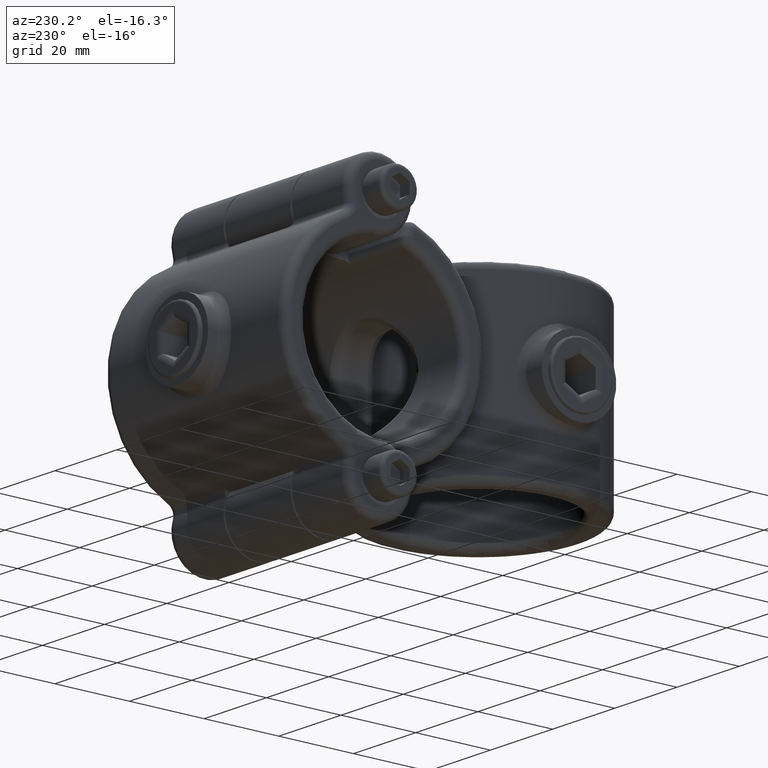
[diagram: clean part render]
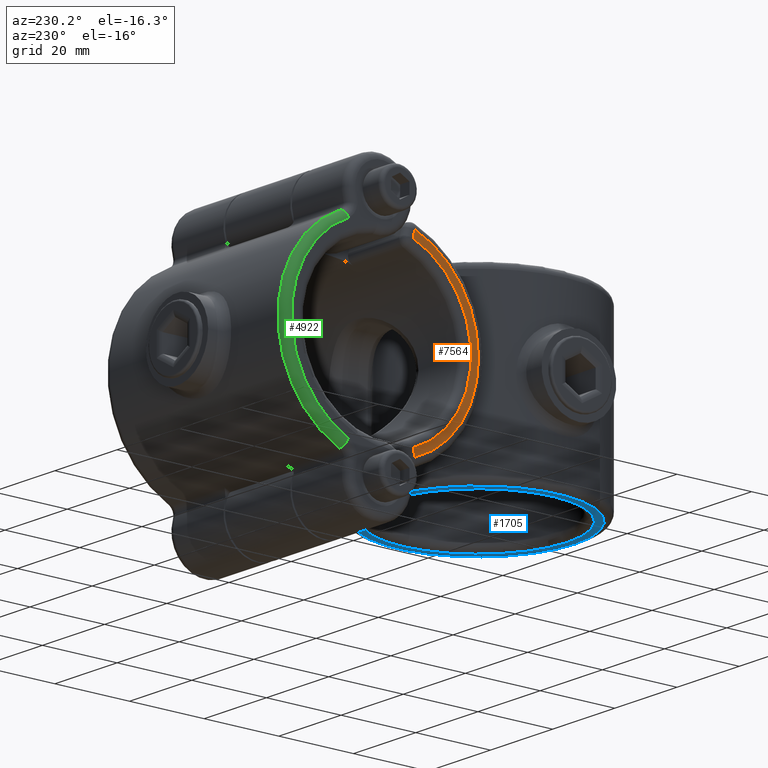
[diagram: same view with three faces highlighted in distinct colors, each labeled with its STEP entity id]
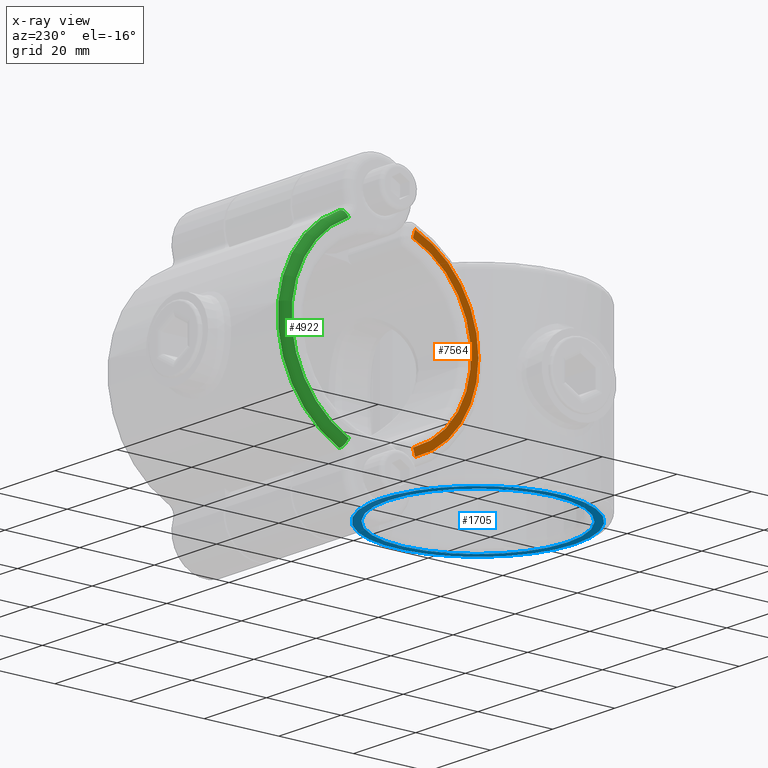
[diagram: x-ray of the same camera — body ghosted, the three highlighted faces saturated]
A machine part, auxiliary view with three faces highlighted in distinct colors.
The next image is the same camera in x-ray (body ghosted, the three faces saturated) — at least one of them is partly hidden behind the body in this view.
Their STEP definitions:

[orange] entity #7564 — the highlighted planar face has unit normal (1, 0, 0).
#17 = FACE_OUTER_BOUND ( 'NONE', #2187, .T. ) ;
#101 = DIRECTION ( 'NONE',  ( 0.000000000000000000, 0.000000000000000000, -1.000000000000000000 ) ) ;
#554 = CARTESIAN_POINT ( 'NONE',  ( -29.00000000000000000, 60.00000000000000000, 0.000000000000000000 ) ) ;
#825 = DIRECTION ( 'NONE',  ( 0.000000000000000000, 0.000000000000000000, -1.000000000000000000 ) ) ;
#1177 = VERTEX_POINT ( 'NONE', #6226 ) ;
#1340 = DIRECTION ( 'NONE',  ( 1.000000000000000000, 0.000000000000000000, 0.000000000000000000 ) ) ;
#1707 = AXIS2_PLACEMENT_3D ( 'NONE', #554, #2963, #7077 ) ;
#1800 = ORIENTED_EDGE ( 'NONE', *, *, #2488, .T. ) ;
#2010 = DIRECTION ( 'NONE',  ( -0.000000000000000000, 0.2727272727272727071, -0.9620913858416693110 ) ) ;
#2052 = LINE ( 'NONE', #5580, #4542 ) ;
#2187 = EDGE_LOOP ( 'NONE', ( #5651, #5465, #1800, #6449 ) ) ;
#2353 = CIRCLE ( 'NONE', #3024, 26.00000000000000355 ) ;
#2488 = EDGE_CURVE ( 'NONE', #6235, #6809, #4553, .T. ) ;
#2963 = DIRECTION ( 'NONE',  ( 1.000000000000000000, 0.000000000000000000, 0.000000000000000000 ) ) ;
#2980 = CARTESIAN_POINT ( 'NONE',  ( -29.00000000000000000, 51.55312955026135313, -22.46442475571835473 ) ) ;
#3024 = AXIS2_PLACEMENT_3D ( 'NONE', #6186, #3197, #825 ) ;
#3168 = EDGE_CURVE ( 'NONE', #3322, #6235, #2052, .T. ) ;
#3197 = DIRECTION ( 'NONE',  ( -1.000000000000000000, -0.000000000000000000, -0.000000000000000000 ) ) ;
#3322 = VERTEX_POINT ( 'NONE', #5112 ) ;
#4285 = PLANE ( 'NONE',  #5403 ) ;
#4542 = VECTOR ( 'NONE', #2010, 1000.000000000000000 ) ;
#4553 = CIRCLE ( 'NONE', #1707, 23.99999999999999289 ) ;
#4793 = CARTESIAN_POINT ( 'NONE',  ( -29.00000000000000000, 58.07581722831665871, 0.5454545454545457472 ) ) ;
#4813 = CARTESIAN_POINT ( 'NONE',  ( -29.00000000000000000, 60.00000000000000000, 0.000000000000000000 ) ) ;
#5112 = CARTESIAN_POINT ( 'NONE',  ( -29.00000000000000000, 51.00591828459899091, 24.39480465379236307 ) ) ;
#5403 = AXIS2_PLACEMENT_3D ( 'NONE', #4813, #1340, #101 ) ;
#5454 = VECTOR ( 'NONE', #6550, 1000.000000000000000 ) ;
#5465 = ORIENTED_EDGE ( 'NONE', *, *, #3168, .T. ) ;
#5567 = EDGE_CURVE ( 'NONE', #1177, #3322, #2353, .T. ) ;
#5580 = CARTESIAN_POINT ( 'NONE',  ( -29.00000000000000000, 58.07581722831665871, -0.5454545454545451921 ) ) ;
#5651 = ORIENTED_EDGE ( 'NONE', *, *, #5567, .T. ) ;
#6186 = CARTESIAN_POINT ( 'NONE',  ( -29.00000000000000000, 60.00000000000000000, 0.000000000000000000 ) ) ;
#6226 = CARTESIAN_POINT ( 'NONE',  ( -29.00000000000000000, 51.00591828459899091, -24.39480465379236307 ) ) ;
#6235 = VERTEX_POINT ( 'NONE', #7209 ) ;
#6449 = ORIENTED_EDGE ( 'NONE', *, *, #7595, .T. ) ;
#6550 = DIRECTION ( 'NONE',  ( 0.000000000000000000, -0.2727272727272727071, -0.9620913858416693110 ) ) ;
#6809 = VERTEX_POINT ( 'NONE', #2980 ) ;
#7020 = LINE ( 'NONE', #4793, #5454 ) ;
#7077 = DIRECTION ( 'NONE',  ( 0.000000000000000000, 0.000000000000000000, -1.000000000000000000 ) ) ;
#7209 = CARTESIAN_POINT ( 'NONE',  ( -29.00000000000000000, 51.55312955026135313, 22.46442475571835473 ) ) ;
#7564 = ADVANCED_FACE ( 'NONE', ( #17 ), #4285, .F. ) ;
#7595 = EDGE_CURVE ( 'NONE', #6809, #1177, #7020, .T. ) ;

[blue] entity #1705 — the highlighted planar face has unit normal (0, 0, 1).
#57 = CARTESIAN_POINT ( 'NONE',  ( 4.210948227296970714, 35.65673235287425058, -24.00000000000000000 ) ) ;
#338 = ORIENTED_EDGE ( 'NONE', *, *, #6721, .T. ) ;
#431 = VERTEX_POINT ( 'NONE', #5681 ) ;
#684 = CIRCLE ( 'NONE', #3768, 24.00000000000000000 ) ;
#1088 = CARTESIAN_POINT ( 'NONE',  ( 0.000000000000000000, 9.999999999999980460, -24.00000000000000000 ) ) ;
#1453 = PLANE ( 'NONE',  #6034 ) ;
#1618 = CARTESIAN_POINT ( 'NONE',  ( -4.210948227237434338, 35.65673235288402054, -24.00000000000000000 ) ) ;
#1705 = ADVANCED_FACE ( 'NONE', ( #1766, #5260 ), #1453, .F. ) ;
#1726 = DIRECTION ( 'NONE',  ( 0.000000000000000000, 0.000000000000000000, 1.000000000000000000 ) ) ;
#1766 = FACE_BOUND ( 'NONE', #2671, .T. ) ;
#1992 = CARTESIAN_POINT ( 'NONE',  ( 0.000000000000000000, 9.999999999999980460, -24.00000000000000000 ) ) ;
#2126 = AXIS2_PLACEMENT_3D ( 'NONE', #1088, #7578, #5366 ) ;
#2345 = CIRCLE ( 'NONE', #2126, 26.00000000000001066 ) ;
#2610 = VERTEX_POINT ( 'NONE', #3066 ) ;
#2671 = EDGE_LOOP ( 'NONE', ( #5326 ) ) ;
#3059 = ORIENTED_EDGE ( 'NONE', *, *, #7398, .T. ) ;
#3066 = CARTESIAN_POINT ( 'NONE',  ( 24.00000000000000000, 9.999999999999980460, -24.00000000000000000 ) ) ;
#3402 = VERTEX_POINT ( 'NONE', #5914 ) ;
#3704 = EDGE_CURVE ( 'NONE', #2610, #2610, #684, .T. ) ;
#3745 = DIRECTION ( 'NONE',  ( 1.000000000000000000, 0.000000000000000000, -0.000000000000000000 ) ) ;
#3768 = AXIS2_PLACEMENT_3D ( 'NONE', #7557, #1726, #5838 ) ;
#3837 = B_SPLINE_CURVE_WITH_KNOTS ( 'NONE', 3,
 ( #1618, #4119, #4071, #5278, #57 ),
 .UNSPECIFIED., .F., .F.,
 ( 4, 1, 4 ),
 ( 0.000000000000000000, 0.004210948227267202401, 0.008421896454534404802 ),
 .UNSPECIFIED. ) ;
#4071 = CARTESIAN_POINT ( 'NONE',  ( 3.033207365832346625E-11, 36.14548051409775553, -23.99999999999999645 ) ) ;
#4119 = CARTESIAN_POINT ( 'NONE',  ( -2.807298818148099340, 35.88710833800874411, -24.00000000000000355 ) ) ;
#5260 = FACE_OUTER_BOUND ( 'NONE', #5878, .T. ) ;
#5278 = CARTESIAN_POINT ( 'NONE',  ( 2.807298818208174396, 35.88710833800188738, -24.00000000000000711 ) ) ;
#5326 = ORIENTED_EDGE ( 'NONE', *, *, #3704, .T. ) ;
#5366 = DIRECTION ( 'NONE',  ( 1.000000000000000000, 0.000000000000000000, 0.000000000000000000 ) ) ;
#5561 = DIRECTION ( 'NONE',  ( 0.000000000000000000, 0.000000000000000000, 1.000000000000000000 ) ) ;
#5681 = CARTESIAN_POINT ( 'NONE',  ( 4.210948227296970714, 35.65673235287425058, -24.00000000000000000 ) ) ;
#5838 = DIRECTION ( 'NONE',  ( 1.000000000000000000, 0.000000000000000000, 0.000000000000000000 ) ) ;
#5878 = EDGE_LOOP ( 'NONE', ( #3059, #338 ) ) ;
#5914 = CARTESIAN_POINT ( 'NONE',  ( -4.210948227237434338, 35.65673235288402054, -24.00000000000000000 ) ) ;
#6034 = AXIS2_PLACEMENT_3D ( 'NONE', #1992, #5561, #3745 ) ;
#6721 = EDGE_CURVE ( 'NONE', #431, #3402, #2345, .T. ) ;
#7398 = EDGE_CURVE ( 'NONE', #3402, #431, #3837, .T. ) ;
#7557 = CARTESIAN_POINT ( 'NONE',  ( 0.000000000000000000, 9.999999999999980460, -24.00000000000000000 ) ) ;
#7578 = DIRECTION ( 'NONE',  ( -0.000000000000000000, -0.000000000000000000, -1.000000000000000000 ) ) ;

[green] entity #4922 — the highlighted toroidal blend (fillet) surface has major radius 26 mm and minor (blend) radius 2 mm.
#46 = EDGE_LOOP ( 'NONE', ( #7306, #6804, #3744, #2726 ) ) ;
#157 = AXIS2_PLACEMENT_3D ( 'NONE', #2926, #563, #7031 ) ;
#563 = DIRECTION ( 'NONE',  ( 0.000000000000000000, 0.000000000000000000, 1.000000000000000000 ) ) ;
#990 = CARTESIAN_POINT ( 'NONE',  ( 0.000000000000000000, 7.999999999999996447, 27.00000000000000355 ) ) ;
#1548 = VERTEX_POINT ( 'NONE', #2820 ) ;
#1592 = EDGE_CURVE ( 'NONE', #3049, #1548, #6642, .T. ) ;
#1828 = DIRECTION ( 'NONE',  ( 1.000000000000000000, -8.673617379884034486E-16, 0.000000000000000000 ) ) ;
#2144 = DIRECTION ( 'NONE',  ( 0.4125681331663774709, 0.9109267454058039837, -0.000000000000000000 ) ) ;
#2262 = CIRCLE ( 'NONE', #6693, 28.00000000000000355 ) ;
#2562 = AXIS2_PLACEMENT_3D ( 'NONE', #990, #7538, #6308 ) ;
#2682 = CARTESIAN_POINT ( 'NONE',  ( -23.68409538055089669, 18.72677146232582857, 27.00000000000000355 ) ) ;
#2726 = ORIENTED_EDGE ( 'NONE', *, *, #1592, .F. ) ;
#2820 = CARTESIAN_POINT ( 'NONE',  ( -23.68409538055089669, 18.72677146232582857, 29.00000000000000000 ) ) ;
#2926 = CARTESIAN_POINT ( 'NONE',  ( 0.000000000000000000, 7.999999999999996447, 29.00000000000000000 ) ) ;
#2970 = CARTESIAN_POINT ( 'NONE',  ( 23.68409538055089669, 18.72677146232582857, 27.00000000000000355 ) ) ;
#2983 = CARTESIAN_POINT ( 'NONE',  ( 0.000000000000000000, 7.999999999999996447, 27.00000000000000355 ) ) ;
#3049 = VERTEX_POINT ( 'NONE', #6013 ) ;
#3175 = TOROIDAL_SURFACE ( 'NONE', #2562, 26.00000000000000355, 2.000000000000000000 ) ;
#3562 = DIRECTION ( 'NONE',  ( -0.4125681331663774709, 0.9109267454058039837, -0.000000000000000000 ) ) ;
#3582 = DIRECTION ( 'NONE',  ( -0.000000000000000000, -0.000000000000000000, -1.000000000000000000 ) ) ;
#3628 = VERTEX_POINT ( 'NONE', #5336 ) ;
#3744 = ORIENTED_EDGE ( 'NONE', *, *, #5733, .T. ) ;
#3834 = EDGE_CURVE ( 'NONE', #3628, #4772, #2262, .T. ) ;
#4081 = CIRCLE ( 'NONE', #4872, 2.000000000000000444 ) ;
#4181 = FACE_OUTER_BOUND ( 'NONE', #46, .T. ) ;
#4453 = DIRECTION ( 'NONE',  ( 0.9109267454058039837, -0.4125681331663774154, 0.000000000000000000 ) ) ;
#4772 = VERTEX_POINT ( 'NONE', #5626 ) ;
#4872 = AXIS2_PLACEMENT_3D ( 'NONE', #2970, #3562, #7592 ) ;
#4920 = CIRCLE ( 'NONE', #7351, 2.000000000000000444 ) ;
#4922 = ADVANCED_FACE ( 'NONE', ( #4181 ), #3175, .T. ) ;
#5336 = CARTESIAN_POINT ( 'NONE',  ( -25.50594887136250222, 19.55190772865858406, 27.00000000000000355 ) ) ;
#5626 = CARTESIAN_POINT ( 'NONE',  ( 25.50594887136250222, 19.55190772865858406, 27.00000000000000355 ) ) ;
#5733 = EDGE_CURVE ( 'NONE', #3628, #1548, #4920, .T. ) ;
#6013 = CARTESIAN_POINT ( 'NONE',  ( 23.68409538055089669, 18.72677146232582857, 29.00000000000000000 ) ) ;
#6308 = DIRECTION ( 'NONE',  ( 1.000000000000000000, 0.000000000000000000, 0.000000000000000000 ) ) ;
#6642 = CIRCLE ( 'NONE', #157, 26.00000000000000355 ) ;
#6693 = AXIS2_PLACEMENT_3D ( 'NONE', #2983, #3582, #1828 ) ;
#6804 = ORIENTED_EDGE ( 'NONE', *, *, #3834, .F. ) ;
#7031 = DIRECTION ( 'NONE',  ( 1.000000000000000000, 0.000000000000000000, 0.000000000000000000 ) ) ;
#7306 = ORIENTED_EDGE ( 'NONE', *, *, #7484, .T. ) ;
#7351 = AXIS2_PLACEMENT_3D ( 'NONE', #2682, #2144, #4453 ) ;
#7484 = EDGE_CURVE ( 'NONE', #3049, #4772, #4081, .T. ) ;
#7538 = DIRECTION ( 'NONE',  ( 0.000000000000000000, 0.000000000000000000, 1.000000000000000000 ) ) ;
#7592 = DIRECTION ( 'NONE',  ( 0.9109267454058039837, 0.4125681331663774154, 0.000000000000000000 ) ) ;